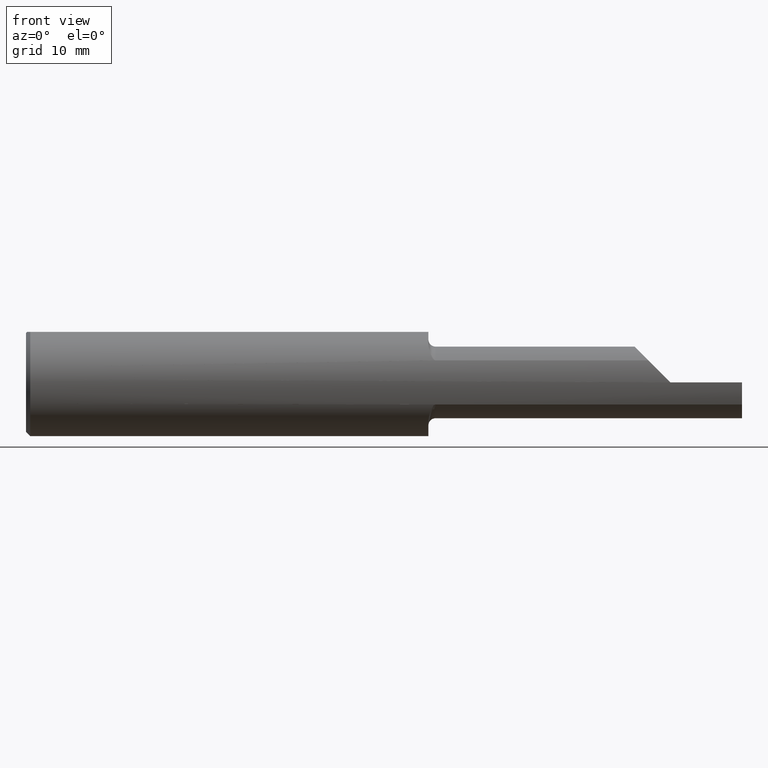
[diagram: clean part render]
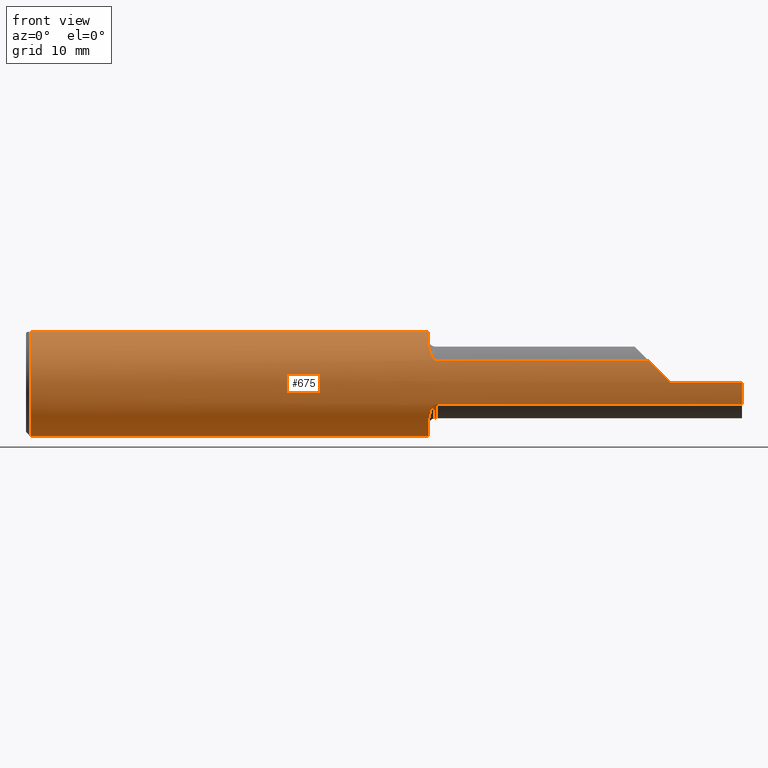
[diagram: same view with one face highlighted and labeled with its STEP entity id]
A machine part, front view. The second image highlights one B-rep face of the part: STEP entity #675.
In plain terms, the highlighted cylindrical surface (partial cylindrical patch) has radius 4.7587 mm, axis along (-1, -0, -0).
Its self-contained STEP definition (entity closure, byte-faithful):
#2 = CARTESIAN_POINT ( 'NONE',  ( 1.408207941101452088, -0.1482224317505123901, 0.1148057762150967304 ) ) ;
#4 = VECTOR ( 'NONE', #872, 39.37007874015748143 ) ;
#7 = CARTESIAN_POINT ( 'NONE',  ( 1.422402770576354225, -0.1687580686002391195, 0.08138221229323114314 ) ) ;
#11 = CARTESIAN_POINT ( 'NONE',  ( 2.250000000000000000, 0.000000000000000000, 0.000000000000000000 ) ) ;
#18 = CARTESIAN_POINT ( 'NONE',  ( 1.428119196786478584, -0.1707639599170698574, 0.07706940050007768384 ) ) ;
#33 = ORIENTED_EDGE ( 'NONE', *, *, #90, .T. ) ;
#44 = CARTESIAN_POINT ( 'NONE',  ( 0.01500000000000079568, 0.000000000000000000, 0.000000000000000000 ) ) ;
#51 = CARTESIAN_POINT ( 'NONE',  ( 1.405000000000000249, 0.06325108694718213631, 0.1763499999999999790 ) ) ;
#53 = CARTESIAN_POINT ( 'NONE',  ( 1.429999999999999938, -0.1707639599170698019, -0.07706940050007766996 ) ) ;
#56 = ORIENTED_EDGE ( 'NONE', *, *, #149, .F. ) ;
#59 = VERTEX_POINT ( 'NONE', #680 ) ;
#68 = VERTEX_POINT ( 'NONE', #310 ) ;
#71 = B_SPLINE_CURVE_WITH_KNOTS ( 'NONE', 3,
 ( #561, #922, #539, #845, #85, #393, #94, #400, #700, #176, #428, #883 ),
 .UNSPECIFIED., .F., .F.,
 ( 4, 2, 2, 2, 2, 4 ),
 ( 0.000000000000000000, 0.001104617015978706868, 0.001656925523968060194, 0.001933079777962732303, 0.002071156904960062828, 0.002209234031957392919 ),
 .UNSPECIFIED. ) ;
#75 = AXIS2_PLACEMENT_3D ( 'NONE', #666, #967, #281 ) ;
#83 = CARTESIAN_POINT ( 'NONE',  ( 1.419265545959849550, -0.1667364282984900026, 0.08548857678050762743 ) ) ;
#85 = CARTESIAN_POINT ( 'NONE',  ( 1.413464385422889436, -0.1602677418389839570, -0.09726402398944668237 ) ) ;
#90 = EDGE_CURVE ( 'NONE', #502, #226, #842, .T. ) ;
#92 = ORIENTED_EDGE ( 'NONE', *, *, #785, .T. ) ;
#94 = CARTESIAN_POINT ( 'NONE',  ( 1.419299808151414100, -0.1667638676707169920, -0.08543442767820319528 ) ) ;
#107 = CARTESIAN_POINT ( 'NONE',  ( 0.01500000000000079568, 0.06325108694718213631, 0.1763499999999999790 ) ) ;
#127 = ORIENTED_EDGE ( 'NONE', *, *, #507, .F. ) ;
#137 = CARTESIAN_POINT ( 'NONE',  ( 2.500000000000000000, -0.1873499999999998222, -6.429183357567480113E-17 ) ) ;
#148 = DIRECTION ( 'NONE',  ( -1.000000000000000000, -0.000000000000000000, -0.000000000000000000 ) ) ;
#149 = EDGE_CURVE ( 'NONE', #509, #384, #833, .T. ) ;
#163 = ORIENTED_EDGE ( 'NONE', *, *, #326, .F. ) ;
#168 = ORIENTED_EDGE ( 'NONE', *, *, #655, .F. ) ;
#174 = CARTESIAN_POINT ( 'NONE',  ( 1.404999999999999583, -0.1287813884456101288, 0.1362691528049925216 ) ) ;
#176 = CARTESIAN_POINT ( 'NONE',  ( 1.426412728618680514, -0.1703887611576448136, -0.07790427710188337074 ) ) ;
#192 = CARTESIAN_POINT ( 'NONE',  ( 1.902500000000000302, -0.1707639599170698019, 0.07706940050007766996 ) ) ;
#207 = DIRECTION ( 'NONE',  ( 0.000000000000000000, 0.000000000000000000, -1.000000000000000000 ) ) ;
#215 = ORIENTED_EDGE ( 'NONE', *, *, #976, .T. ) ;
#225 = CARTESIAN_POINT ( 'NONE',  ( 1.405000000000000249, -0.1232518659295093050, 0.1410992560040422727 ) ) ;
#226 = VERTEX_POINT ( 'NONE', #720 ) ;
#230 = CARTESIAN_POINT ( 'NONE',  ( 1.417679829691370852, -0.1652024577544480843, 0.08842811073770914798 ) ) ;
#232 = CARTESIAN_POINT ( 'NONE',  ( 1.405000000000000249, 0.000000000000000000, 0.000000000000000000 ) ) ;
#233 = VECTOR ( 'NONE', #961, 39.37007874015748143 ) ;
#240 = CARTESIAN_POINT ( 'NONE',  ( 1.902500000000000302, -0.1707639599170698019, -0.07706940050007766996 ) ) ;
#241 = AXIS2_PLACEMENT_3D ( 'NONE', #584, #409, #511 ) ;
#245 = CIRCLE ( 'NONE', #377, 0.1873499999999999888 ) ;
#248 = CARTESIAN_POINT ( 'NONE',  ( 1.429999999999999938, -0.1707639599170698019, 0.07706940050007766996 ) ) ;
#251 = CARTESIAN_POINT ( 'NONE',  ( 1.405000000000000249, -0.1232518659295093050, 0.1410992560040422727 ) ) ;
#272 = LINE ( 'NONE', #648, #233 ) ;
#281 = DIRECTION ( 'NONE',  ( 0.000000000000000000, 0.000000000000000000, -1.000000000000000000 ) ) ;
#284 = ORIENTED_EDGE ( 'NONE', *, *, #860, .T. ) ;
#306 = VECTOR ( 'NONE', #396, 39.37007874015748143 ) ;
#310 = CARTESIAN_POINT ( 'NONE',  ( 2.173280599499920918, -0.1707639599170693578, 0.07706940050007844711 ) ) ;
#314 = VECTOR ( 'NONE', #660, 39.37007874015748143 ) ;
#315 = CARTESIAN_POINT ( 'NONE',  ( 2.500000000000000000, -0.1707639599170698019, -0.07706940050007768384 ) ) ;
#326 = EDGE_CURVE ( 'NONE', #876, #68, #878, .T. ) ;
#329 = CIRCLE ( 'NONE', #241, 0.1873499999999999888 ) ;
#338 = DIRECTION ( 'NONE',  ( 1.000000000000000000, 0.000000000000000000, 0.000000000000000000 ) ) ;
#357 = ORIENTED_EDGE ( 'NONE', *, *, #627, .T. ) ;
#359 = B_SPLINE_CURVE_WITH_KNOTS ( 'NONE', 3,
 ( #248, #18, #932, #380, #7, #83, #230, #636, #681, #2, #855, #623, #174, #225 ),
 .UNSPECIFIED., .F., .F.,
 ( 4, 2, 2, 2, 2, 2, 4 ),
 ( 0.000000000000000000, 0.0001403017184444718668, 0.0002806034368889437336, 0.0005612068737778991767, 0.001122413747555808979, 0.001683620621333718889, 0.002244827495111628799 ),
 .UNSPECIFIED. ) ;
#365 = CARTESIAN_POINT ( 'NONE',  ( 2.250000000000000000, -0.1873499999999999610, -6.429183357567478880E-17 ) ) ;
#366 = EDGE_LOOP ( 'NONE', ( #56, #588, #480, #215, #284, #163, #765, #168, #33, #92, #834, #357, #127, #801 ) ) ;
#377 = AXIS2_PLACEMENT_3D ( 'NONE', #11, #824, #457 ) ;
#380 = CARTESIAN_POINT ( 'NONE',  ( 1.423558876738254542, -0.1693773766851885687, 0.08007975305238294872 ) ) ;
#384 = VERTEX_POINT ( 'NONE', #53 ) ;
#393 = CARTESIAN_POINT ( 'NONE',  ( 1.417704374933954625, -0.1652286770924342452, -0.08837992419368183306 ) ) ;
#396 = DIRECTION ( 'NONE',  ( -1.000000000000000000, -0.000000000000000000, -0.000000000000000000 ) ) ;
#400 = CARTESIAN_POINT ( 'NONE',  ( 1.422430508348289546, -0.1687732045416835136, -0.08135065796925473880 ) ) ;
#402 = EDGE_CURVE ( 'NONE', #422, #509, #590, .T. ) ;
#409 = DIRECTION ( 'NONE',  ( 1.000000000000000000, -0.000000000000000000, -0.000000000000000000 ) ) ;
#422 = VERTEX_POINT ( 'NONE', #137 ) ;
#423 = LINE ( 'NONE', #817, #314 ) ;
#428 = CARTESIAN_POINT ( 'NONE',  ( 1.428132574457247284, -0.1707639599170698019, -0.07706940050007762832 ) ) ;
#432 = VERTEX_POINT ( 'NONE', #365 ) ;
#455 = VERTEX_POINT ( 'NONE', #251 ) ;
#457 = DIRECTION ( 'NONE',  ( 0.000000000000000000, 0.000000000000000000, 1.000000000000000000 ) ) ;
#475 = AXIS2_PLACEMENT_3D ( 'NONE', #44, #880, #813 ) ;
#476 = DIRECTION ( 'NONE',  ( 0.000000000000000000, 0.000000000000000000, -1.000000000000000000 ) ) ;
#480 = ORIENTED_EDGE ( 'NONE', *, *, #615, .T. ) ;
#486 = VECTOR ( 'NONE', #910, 39.37007874015748143 ) ;
#489 = CARTESIAN_POINT ( 'NONE',  ( 2.223443328839086242, -0.1873000608423838198, 0.02690667116091345970 ) ) ;
#494 = VERTEX_POINT ( 'NONE', #792 ) ;
#496 = AXIS2_PLACEMENT_3D ( 'NONE', #831, #148, #897 ) ;
#502 = VERTEX_POINT ( 'NONE', #690 ) ;
#507 = EDGE_CURVE ( 'NONE', #494, #605, #653, .T. ) ;
#509 = VERTEX_POINT ( 'NONE', #315 ) ;
#511 = DIRECTION ( 'NONE',  ( 0.000000000000000000, 0.000000000000000000, -1.000000000000000000 ) ) ;
#518 = EDGE_CURVE ( 'NONE', #494, #384, #71, .T. ) ;
#521 = AXIS2_PLACEMENT_3D ( 'NONE', #232, #338, #476 ) ;
#525 = CYLINDRICAL_SURFACE ( 'NONE', #496, 0.1873499999999999888 ) ;
#539 = CARTESIAN_POINT ( 'NONE',  ( 1.406555970616604423, -0.1439812988895033674, -0.1207222593517345705 ) ) ;
#561 = CARTESIAN_POINT ( 'NONE',  ( 1.405000000000000249, -0.1232518659295093050, -0.1410992560040422727 ) ) ;
#574 = AXIS2_PLACEMENT_3D ( 'NONE', #592, #895, #207 ) ;
#584 = CARTESIAN_POINT ( 'NONE',  ( 0.01500000000000079568, 0.000000000000000000, 0.000000000000000000 ) ) ;
#588 = ORIENTED_EDGE ( 'NONE', *, *, #402, .F. ) ;
#590 = CIRCLE ( 'NONE', #574, 0.1873499999999999888 ) ;
#592 = CARTESIAN_POINT ( 'NONE',  ( 2.500000000000000000, 0.000000000000000000, 0.000000000000000000 ) ) ;
#598 = CIRCLE ( 'NONE', #475, 0.1873499999999999888 ) ;
#605 = VERTEX_POINT ( 'NONE', #51 ) ;
#606 = EDGE_CURVE ( 'NONE', #751, #770, #598, .T. ) ;
#615 = EDGE_CURVE ( 'NONE', #422, #432, #423, .T. ) ;
#622 = CARTESIAN_POINT ( 'NONE',  ( 2.500000000000000000, -0.06325108694718213631, 0.1763499999999999790 ) ) ;
#623 = CARTESIAN_POINT ( 'NONE',  ( 1.405424272813302400, -0.1340287381043764880, 0.1311054684688080785 ) ) ;
#627 = EDGE_CURVE ( 'NONE', #770, #605, #272, .T. ) ;
#636 = CARTESIAN_POINT ( 'NONE',  ( 1.413471533398396041, -0.1602710687746327634, 0.09725558226055720790 ) ) ;
#648 = CARTESIAN_POINT ( 'NONE',  ( 2.500000000000000000, 0.06325108694718213631, 0.1763499999999999790 ) ) ;
#653 = CIRCLE ( 'NONE', #521, 0.1873499999999999888 ) ;
#655 = EDGE_CURVE ( 'NONE', #502, #455, #798, .T. ) ;
#660 = DIRECTION ( 'NONE',  ( -1.000000000000000000, -0.000000000000000000, -0.000000000000000000 ) ) ;
#662 = CARTESIAN_POINT ( 'NONE',  ( 2.250000000000000000, -0.1873496730715054903, 0.0003499999999991848933 ) ) ;
#666 = CARTESIAN_POINT ( 'NONE',  ( 1.405000000000000249, 0.000000000000000000, 0.000000000000000000 ) ) ;
#675 = ADVANCED_FACE ( 'NONE', ( #877 ), #525, .T. ) ;
#680 = CARTESIAN_POINT ( 'NONE',  ( 2.250000000000000000, -0.1873496730715054903, 0.0003499999999991848933 ) ) ;
#681 = CARTESIAN_POINT ( 'NONE',  ( 1.411436535702075945, -0.1564726682735308738, 0.1032790376104839730 ) ) ;
#690 = CARTESIAN_POINT ( 'NONE',  ( 1.405000000000000249, -0.06325108694718215019, 0.1763499999999999790 ) ) ;
#700 = CARTESIAN_POINT ( 'NONE',  ( 1.423606395404011682, -0.1693970531853373762, -0.08003777040702687862 ) ) ;
#704 =( BOUNDED_CURVE ( )  B_SPLINE_CURVE ( 3, ( #662, #489, #790, #890 ),
 .UNSPECIFIED., .F., .F. ) 
 B_SPLINE_CURVE_WITH_KNOTS ( ( 4, 4 ),
 ( 4.714257142666966161, 5.136341099405672850 ),
 .UNSPECIFIED. ) 
 CURVE ( )  GEOMETRIC_REPRESENTATION_ITEM ( )  RATIONAL_B_SPLINE_CURVE ( ( 1.000000000000000000, 0.9852087820824323439, 0.9852087820824323439, 1.000000000000000000 ) ) 
 REPRESENTATION_ITEM ( '' )  );
#720 = CARTESIAN_POINT ( 'NONE',  ( 0.01500000000000079048, -0.06325108694718213631, 0.1763499999999999790 ) ) ;
#730 = EDGE_CURVE ( 'NONE', #876, #455, #359, .T. ) ;
#751 = VERTEX_POINT ( 'NONE', #769 ) ;
#765 = ORIENTED_EDGE ( 'NONE', *, *, #730, .T. ) ;
#769 = CARTESIAN_POINT ( 'NONE',  ( 0.01500000000000079568, 0.000000000000000000, -0.1873499999999999888 ) ) ;
#770 = VERTEX_POINT ( 'NONE', #107 ) ;
#785 = EDGE_CURVE ( 'NONE', #226, #751, #329, .T. ) ;
#790 = CARTESIAN_POINT ( 'NONE',  ( 2.197486258657502134, -0.1816884877910424079, 0.05286374134249727241 ) ) ;
#792 = CARTESIAN_POINT ( 'NONE',  ( 1.405000000000000249, -0.1232518659295093050, -0.1410992560040422727 ) ) ;
#798 = CIRCLE ( 'NONE', #75, 0.1873499999999999888 ) ;
#801 = ORIENTED_EDGE ( 'NONE', *, *, #518, .T. ) ;
#813 = DIRECTION ( 'NONE',  ( 0.000000000000000000, 0.000000000000000000, -1.000000000000000000 ) ) ;
#817 = CARTESIAN_POINT ( 'NONE',  ( 2.500000000000000000, -0.1873499999999999888, -6.429183357567480113E-17 ) ) ;
#824 = DIRECTION ( 'NONE',  ( -1.000000000000000000, -0.000000000000000000, -0.000000000000000000 ) ) ;
#831 = CARTESIAN_POINT ( 'NONE',  ( 2.500000000000000000, 0.000000000000000000, 0.000000000000000000 ) ) ;
#833 = LINE ( 'NONE', #240, #306 ) ;
#834 = ORIENTED_EDGE ( 'NONE', *, *, #606, .T. ) ;
#842 = LINE ( 'NONE', #622, #486 ) ;
#845 = CARTESIAN_POINT ( 'NONE',  ( 1.411432066522875450, -0.1564710502669967584, -0.1032857535508501373 ) ) ;
#855 = CARTESIAN_POINT ( 'NONE',  ( 1.407031986092416975, -0.1437385609081069104, 0.1203809478627894392 ) ) ;
#860 = EDGE_CURVE ( 'NONE', #59, #68, #704, .T. ) ;
#872 = DIRECTION ( 'NONE',  ( 1.000000000000000000, 0.000000000000000000, 0.000000000000000000 ) ) ;
#876 = VERTEX_POINT ( 'NONE', #959 ) ;
#877 = FACE_OUTER_BOUND ( 'NONE', #366, .T. ) ;
#878 = LINE ( 'NONE', #192, #4 ) ;
#880 = DIRECTION ( 'NONE',  ( 1.000000000000000000, -0.000000000000000000, -0.000000000000000000 ) ) ;
#883 = CARTESIAN_POINT ( 'NONE',  ( 1.429999999999999938, -0.1707639599170698019, -0.07706940050007766996 ) ) ;
#890 = CARTESIAN_POINT ( 'NONE',  ( 2.173280599499920918, -0.1707639599170693578, 0.07706940050007844711 ) ) ;
#895 = DIRECTION ( 'NONE',  ( 1.000000000000000000, 0.000000000000000000, 0.000000000000000000 ) ) ;
#897 = DIRECTION ( 'NONE',  ( 0.000000000000000000, 0.000000000000000000, 1.000000000000000000 ) ) ;
#910 = DIRECTION ( 'NONE',  ( -1.000000000000000000, -0.000000000000000000, -0.000000000000000000 ) ) ;
#922 = CARTESIAN_POINT ( 'NONE',  ( 1.405000000000000471, -0.1343272889970693329, -0.1314247431986991232 ) ) ;
#932 = CARTESIAN_POINT ( 'NONE',  ( 1.426406265684706964, -0.1703893073657099244, 0.07790344355110689900 ) ) ;
#959 = CARTESIAN_POINT ( 'NONE',  ( 1.429999999999999938, -0.1707639599170698019, 0.07706940050007766996 ) ) ;
#961 = DIRECTION ( 'NONE',  ( 1.000000000000000000, 0.000000000000000000, 0.000000000000000000 ) ) ;
#967 = DIRECTION ( 'NONE',  ( 1.000000000000000000, 0.000000000000000000, 0.000000000000000000 ) ) ;
#976 = EDGE_CURVE ( 'NONE', #432, #59, #245, .T. ) ;